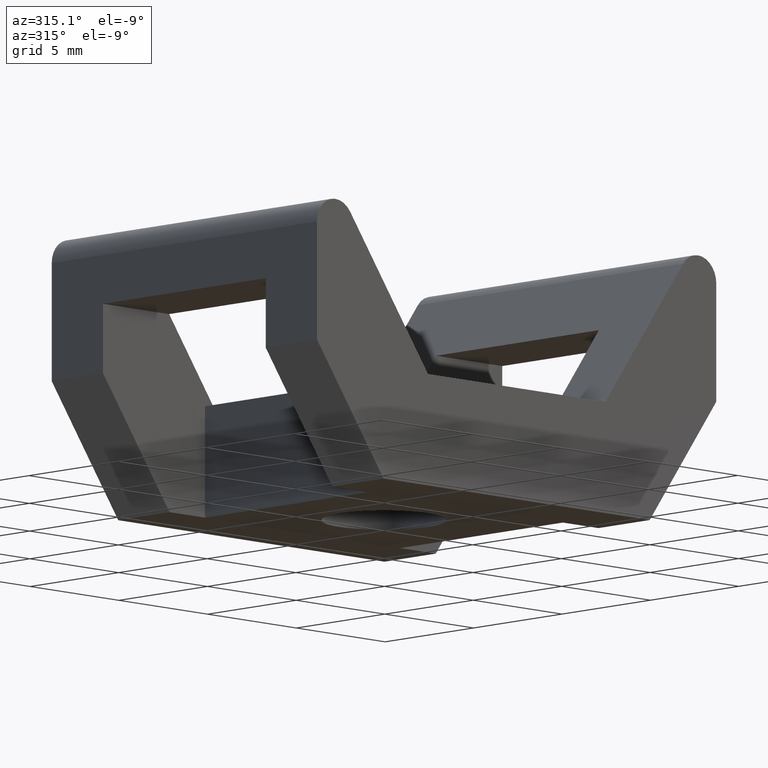
[diagram: clean part render]
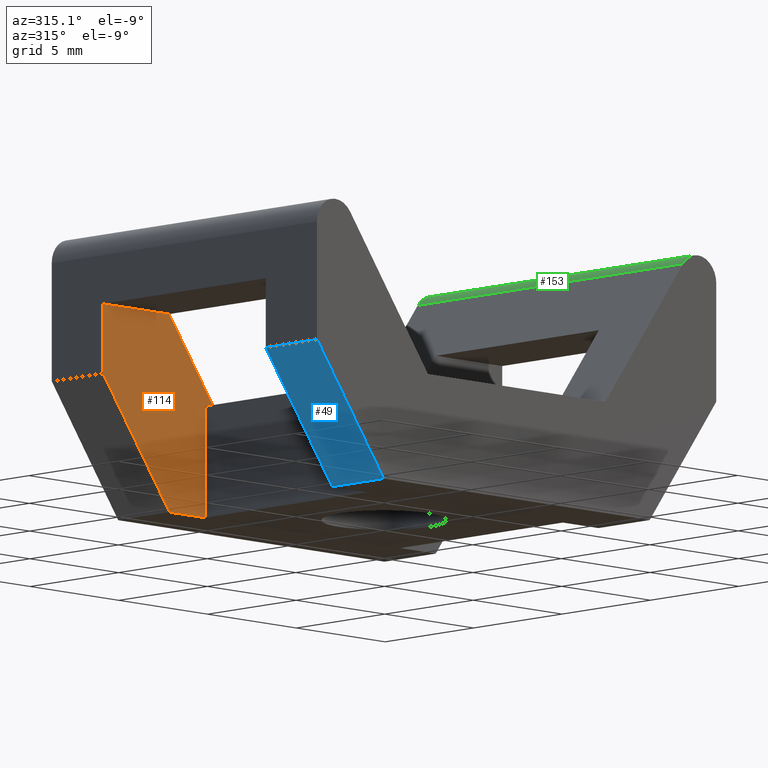
[diagram: same view with three faces highlighted in distinct colors, each labeled with its STEP entity id]
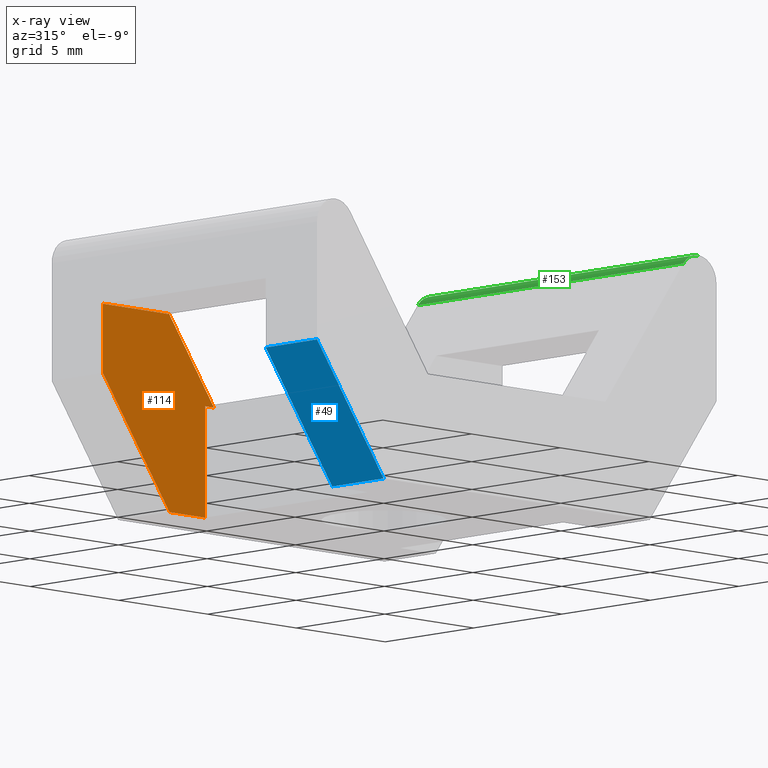
[diagram: x-ray of the same camera — body ghosted, the three highlighted faces saturated]
A machine part, auxiliary view with three faces highlighted in distinct colors.
The next image is the same camera in x-ray (body ghosted, the three faces saturated) — at least one of them is partly hidden behind the body in this view.
Their STEP definitions:

[orange] entity #114 — the highlighted planar face has unit normal (0, 1, -0).
#10 = VECTOR ( 'NONE', #156, 1000.000000000000000 ) ;
#31 = LINE ( 'NONE', #631, #371 ) ;
#42 = CARTESIAN_POINT ( 'NONE',  ( -5.500000000000000000, 4.599999999999999600, 3.061616997868379900E-015 ) ) ;
#69 = VECTOR ( 'NONE', #899, 1000.000000000000100 ) ;
#111 = LINE ( 'NONE', #908, #10 ) ;
#114 = ADVANCED_FACE ( 'NONE', ( #784 ), #505, .F. ) ;
#123 = CARTESIAN_POINT ( 'NONE',  ( -7.500000000000000000, 4.600000000000001400, 2.220446049250309900E-015 ) ) ;
#130 = VECTOR ( 'NONE', #853, 1000.000000000000000 ) ;
#156 = DIRECTION ( 'NONE',  ( -1.000000000000000000, 0.0000000000000000000, -0.0000000000000000000 ) ) ;
#162 = VERTEX_POINT ( 'NONE', #460 ) ;
#171 = VERTEX_POINT ( 'NONE', #302 ) ;
#240 = LINE ( 'NONE', #935, #130 ) ;
#271 = ORIENTED_EDGE ( 'NONE', *, *, #342, .F. ) ;
#297 = LINE ( 'NONE', #815, #481 ) ;
#302 = CARTESIAN_POINT ( 'NONE',  ( -5.000000000000000000, 4.599999999999999600, 4.500000000000000900 ) ) ;
#307 = LINE ( 'NONE', #123, #69 ) ;
#342 = EDGE_CURVE ( 'NONE', #635, #615, #525, .T. ) ;
#361 = EDGE_LOOP ( 'NONE', ( #1084, #733, #814, #271, #577, #892, #1048 ) ) ;
#371 = VECTOR ( 'NONE', #794, 1000.000000000000000 ) ;
#396 = VERTEX_POINT ( 'NONE', #683 ) ;
#401 = CARTESIAN_POINT ( 'NONE',  ( -11.25000000000000200, 4.600000000000001400, 5.200000000000001100 ) ) ;
#406 = DIRECTION ( 'NONE',  ( 1.000000000000000000, -0.0000000000000000000, 0.0000000000000000000 ) ) ;
#422 = DIRECTION ( 'NONE',  ( 0.0000000000000000000, 1.000000000000000000, -0.0000000000000000000 ) ) ;
#460 = CARTESIAN_POINT ( 'NONE',  ( -11.25000000000000200, 4.599999999999999600, 8.000000000000010700 ) ) ;
#462 = CARTESIAN_POINT ( 'NONE',  ( -7.500000000000000900, 4.600000000000001400, 2.878664562899133700E-015 ) ) ;
#481 = VECTOR ( 'NONE', #971, 1000.000000000000200 ) ;
#489 = CARTESIAN_POINT ( 'NONE',  ( -5.500000000000000000, 4.599999999999999600, 8.000000000000010700 ) ) ;
#493 = EDGE_CURVE ( 'NONE', #635, #396, #31, .T. ) ;
#505 = PLANE ( 'NONE',  #719 ) ;
#509 = DIRECTION ( 'NONE',  ( 0.0000000000000000000, 0.0000000000000000000, 1.000000000000000000 ) ) ;
#522 = CARTESIAN_POINT ( 'NONE',  ( -7.524038461538468800, 4.599999999999999600, 8.000000000000007100 ) ) ;
#525 = LINE ( 'NONE', #1020, #599 ) ;
#577 = ORIENTED_EDGE ( 'NONE', *, *, #493, .T. ) ;
#599 = VECTOR ( 'NONE', #674, 1000.000000000000000 ) ;
#615 = VERTEX_POINT ( 'NONE', #462 ) ;
#625 = EDGE_CURVE ( 'NONE', #867, #171, #297, .T. ) ;
#631 = CARTESIAN_POINT ( 'NONE',  ( -5.500000000000000000, 4.599999999999999600, 3.061616997868380300E-015 ) ) ;
#635 = VERTEX_POINT ( 'NONE', #42 ) ;
#654 = EDGE_CURVE ( 'NONE', #615, #720, #307, .T. ) ;
#674 = DIRECTION ( 'NONE',  ( -1.000000000000000000, 0.0000000000000000000, 3.061616997868380200E-016 ) ) ;
#683 = CARTESIAN_POINT ( 'NONE',  ( -5.500000000000000000, 4.599999999999999600, 4.500000000000000900 ) ) ;
#686 = EDGE_CURVE ( 'NONE', #162, #867, #1074, .T. ) ;
#719 = AXIS2_PLACEMENT_3D ( 'NONE', #1012, #422, #509 ) ;
#720 = VERTEX_POINT ( 'NONE', #401 ) ;
#733 = ORIENTED_EDGE ( 'NONE', *, *, #886, .F. ) ;
#782 = EDGE_CURVE ( 'NONE', #171, #396, #111, .T. ) ;
#784 = FACE_OUTER_BOUND ( 'NONE', #361, .T. ) ;
#794 = DIRECTION ( 'NONE',  ( 2.775557561562889900E-016, -0.0000000000000000000, 1.000000000000000000 ) ) ;
#814 = ORIENTED_EDGE ( 'NONE', *, *, #654, .F. ) ;
#815 = CARTESIAN_POINT ( 'NONE',  ( -7.524038461538469700, 4.599999999999999600, 8.000000000000000000 ) ) ;
#853 = DIRECTION ( 'NONE',  ( 0.0000000000000000000, 0.0000000000000000000, 1.000000000000000000 ) ) ;
#867 = VERTEX_POINT ( 'NONE', #522 ) ;
#872 = VECTOR ( 'NONE', #406, 1000.000000000000000 ) ;
#886 = EDGE_CURVE ( 'NONE', #720, #162, #240, .T. ) ;
#892 = ORIENTED_EDGE ( 'NONE', *, *, #782, .F. ) ;
#899 = DIRECTION ( 'NONE',  ( -0.5849209123409887500, 0.0000000000000000000, 0.8110903317795036300 ) ) ;
#908 = CARTESIAN_POINT ( 'NONE',  ( -5.500000000000000000, 4.599999999999999600, 4.500000000000000900 ) ) ;
#935 = CARTESIAN_POINT ( 'NONE',  ( -11.25000000000000000, 4.599999999999999600, 3.061616997868380300E-015 ) ) ;
#971 = DIRECTION ( 'NONE',  ( 0.5849209123409896400, 0.0000000000000000000, -0.8110903317795030700 ) ) ;
#1012 = CARTESIAN_POINT ( 'NONE',  ( -5.500000000000000000, 4.599999999999999600, 3.061616997868380300E-015 ) ) ;
#1020 = CARTESIAN_POINT ( 'NONE',  ( 7.500000000000000000, 4.599999999999999600, -9.184850993605149900E-016 ) ) ;
#1048 = ORIENTED_EDGE ( 'NONE', *, *, #625, .F. ) ;
#1074 = LINE ( 'NONE', #489, #872 ) ;
#1084 = ORIENTED_EDGE ( 'NONE', *, *, #686, .F. ) ;

[blue] entity #49 — the highlighted planar face has unit normal (-0.8111, 0, -0.5849).
#49 = ADVANCED_FACE ( 'NONE', ( #181 ), #659, .T. ) ;
#61 = EDGE_CURVE ( 'NONE', #294, #484, #347, .T. ) ;
#89 = DIRECTION ( 'NONE',  ( 0.0000000000000000000, 1.000000000000000000, 0.0000000000000000000 ) ) ;
#145 = VERTEX_POINT ( 'NONE', #366 ) ;
#152 = CARTESIAN_POINT ( 'NONE',  ( -11.25000000000000000, -4.599999999999999600, 5.200000000000001100 ) ) ;
#175 = EDGE_LOOP ( 'NONE', ( #958, #845, #390, #1044 ) ) ;
#181 = FACE_OUTER_BOUND ( 'NONE', #175, .T. ) ;
#216 = EDGE_CURVE ( 'NONE', #294, #572, #944, .T. ) ;
#246 = CARTESIAN_POINT ( 'NONE',  ( -7.500000000000000000, 0.0000000000000000000, 3.673940397442054400E-015 ) ) ;
#294 = VERTEX_POINT ( 'NONE', #595 ) ;
#331 = CARTESIAN_POINT ( 'NONE',  ( -11.25000000000000400, 0.0000000000000000000, 5.200000000000001100 ) ) ;
#347 = LINE ( 'NONE', #246, #448 ) ;
#366 = CARTESIAN_POINT ( 'NONE',  ( -11.25000000000000200, -4.600000000000001400, 5.200000000000000200 ) ) ;
#390 = ORIENTED_EDGE ( 'NONE', *, *, #747, .T. ) ;
#448 = VECTOR ( 'NONE', #89, 1000.000000000000000 ) ;
#484 = VERTEX_POINT ( 'NONE', #803 ) ;
#523 = VECTOR ( 'NONE', #998, 1000.000000000000100 ) ;
#572 = VERTEX_POINT ( 'NONE', #642 ) ;
#595 = CARTESIAN_POINT ( 'NONE',  ( -7.499999999999998200, -7.500000000000000900, 2.824873556341609300E-015 ) ) ;
#642 = CARTESIAN_POINT ( 'NONE',  ( -11.25000000000000000, -7.500000000000000000, 5.200000000000001100 ) ) ;
#659 = PLANE ( 'NONE',  #949 ) ;
#747 = EDGE_CURVE ( 'NONE', #145, #484, #1089, .T. ) ;
#750 = DIRECTION ( 'NONE',  ( -0.5849209123409887500, 0.0000000000000000000, 0.8110903317795036300 ) ) ;
#765 = DIRECTION ( 'NONE',  ( -0.8110903317795036300, 0.0000000000000000000, -0.5849209123409887500 ) ) ;
#803 = CARTESIAN_POINT ( 'NONE',  ( -7.500000000000000000, -4.600000000000001400, 3.455781087026155000E-015 ) ) ;
#845 = ORIENTED_EDGE ( 'NONE', *, *, #927, .T. ) ;
#868 = VECTOR ( 'NONE', #1004, 1000.000000000000000 ) ;
#927 = EDGE_CURVE ( 'NONE', #572, #145, #1045, .T. ) ;
#944 = LINE ( 'NONE', #1081, #523 ) ;
#948 = VECTOR ( 'NONE', #997, 1000.000000000000000 ) ;
#949 = AXIS2_PLACEMENT_3D ( 'NONE', #1017, #765, #750 ) ;
#958 = ORIENTED_EDGE ( 'NONE', *, *, #216, .T. ) ;
#997 = DIRECTION ( 'NONE',  ( 0.5849209123409886400, 0.0000000000000000000, -0.8110903317795038500 ) ) ;
#998 = DIRECTION ( 'NONE',  ( -0.5849209123409887500, 0.0000000000000000000, 0.8110903317795036300 ) ) ;
#1004 = DIRECTION ( 'NONE',  ( 0.0000000000000000000, 1.000000000000000000, 0.0000000000000000000 ) ) ;
#1017 = CARTESIAN_POINT ( 'NONE',  ( -7.500000000000000000, 0.0000000000000000000, 2.220446049250309900E-015 ) ) ;
#1044 = ORIENTED_EDGE ( 'NONE', *, *, #61, .F. ) ;
#1045 = LINE ( 'NONE', #331, #868 ) ;
#1081 = CARTESIAN_POINT ( 'NONE',  ( -7.500000000000000000, -7.500000000000003600, 2.220446049250309900E-015 ) ) ;
#1089 = LINE ( 'NONE', #152, #948 ) ;

[green] entity #153 — the highlighted cylindrical surface (edge-blend (fillet) strip) has radius 1.0336 mm, axis along (0, 1, 0).
#3 = CARTESIAN_POINT ( 'NONE',  ( 9.378116215530869900, -7.500000000000000000, 10.57098781886948100 ) ) ;
#65 = VECTOR ( 'NONE', #229, 1000.000000000000000 ) ;
#95 = DIRECTION ( 'NONE',  ( 0.0000000000000000000, 0.0000000000000000000, 1.000000000000000000 ) ) ;
#109 = VECTOR ( 'NONE', #348, 1000.000000000000000 ) ;
#153 = ADVANCED_FACE ( 'NONE', ( #333 ), #511, .T. ) ;
#176 = ORIENTED_EDGE ( 'NONE', *, *, #475, .T. ) ;
#180 = AXIS2_PLACEMENT_3D ( 'NONE', #620, #780, #95 ) ;
#203 = EDGE_CURVE ( 'NONE', #381, #808, #966, .T. ) ;
#229 = DIRECTION ( 'NONE',  ( 0.0000000000000000000, 1.000000000000000000, 0.0000000000000000000 ) ) ;
#247 = CARTESIAN_POINT ( 'NONE',  ( 10.21643267780580000, 7.500000000000000000, 11.00000000000000200 ) ) ;
#269 = EDGE_LOOP ( 'NONE', ( #880, #708, #176, #469 ) ) ;
#333 = FACE_OUTER_BOUND ( 'NONE', #269, .T. ) ;
#348 = DIRECTION ( 'NONE',  ( 0.0000000000000000000, 1.000000000000000000, -0.0000000000000000000 ) ) ;
#381 = VERTEX_POINT ( 'NONE', #844 ) ;
#403 = EDGE_CURVE ( 'NONE', #827, #695, #891, .T. ) ;
#469 = ORIENTED_EDGE ( 'NONE', *, *, #403, .F. ) ;
#471 = DIRECTION ( 'NONE',  ( 0.0000000000000000000, 0.0000000000000000000, 1.000000000000000000 ) ) ;
#475 = EDGE_CURVE ( 'NONE', #808, #695, #704, .T. ) ;
#477 = AXIS2_PLACEMENT_3D ( 'NONE', #943, #699, #783 ) ;
#506 = CARTESIAN_POINT ( 'NONE',  ( 9.378116215530869900, 7.500000000000000000, 10.57098781886948100 ) ) ;
#511 = CYLINDRICAL_SURFACE ( 'NONE', #834, 1.033567322194190600 ) ;
#569 = CARTESIAN_POINT ( 'NONE',  ( 10.21643267780580000, 0.0000000000000000000, 11.00000000000000200 ) ) ;
#620 = CARTESIAN_POINT ( 'NONE',  ( 10.21643267780580000, 7.500000000000000000, 9.966432677805810800 ) ) ;
#662 = CIRCLE ( 'NONE', #477, 1.033567322194190600 ) ;
#695 = VERTEX_POINT ( 'NONE', #506 ) ;
#699 = DIRECTION ( 'NONE',  ( -0.0000000000000000000, -1.000000000000000000, -0.0000000000000000000 ) ) ;
#704 = CIRCLE ( 'NONE', #180, 1.033567322194190600 ) ;
#708 = ORIENTED_EDGE ( 'NONE', *, *, #203, .T. ) ;
#780 = DIRECTION ( 'NONE',  ( -0.0000000000000000000, -1.000000000000000000, -0.0000000000000000000 ) ) ;
#783 = DIRECTION ( 'NONE',  ( 0.0000000000000000000, 0.0000000000000000000, 1.000000000000000000 ) ) ;
#808 = VERTEX_POINT ( 'NONE', #247 ) ;
#818 = DIRECTION ( 'NONE',  ( 0.0000000000000000000, 1.000000000000000000, 0.0000000000000000000 ) ) ;
#827 = VERTEX_POINT ( 'NONE', #3 ) ;
#834 = AXIS2_PLACEMENT_3D ( 'NONE', #974, #818, #471 ) ;
#844 = CARTESIAN_POINT ( 'NONE',  ( 10.21643267780580000, -7.500000000000000000, 11.00000000000000200 ) ) ;
#880 = ORIENTED_EDGE ( 'NONE', *, *, #1051, .F. ) ;
#891 = LINE ( 'NONE', #937, #109 ) ;
#937 = CARTESIAN_POINT ( 'NONE',  ( 9.378116215530887700, 0.0000000000000000000, 10.57098781886949000 ) ) ;
#943 = CARTESIAN_POINT ( 'NONE',  ( 10.21643267780580000, -7.500000000000000000, 9.966432677805810800 ) ) ;
#966 = LINE ( 'NONE', #569, #65 ) ;
#974 = CARTESIAN_POINT ( 'NONE',  ( 10.21643267780580000, 0.0000000000000000000, 9.966432677805810800 ) ) ;
#1051 = EDGE_CURVE ( 'NONE', #381, #827, #662, .T. ) ;